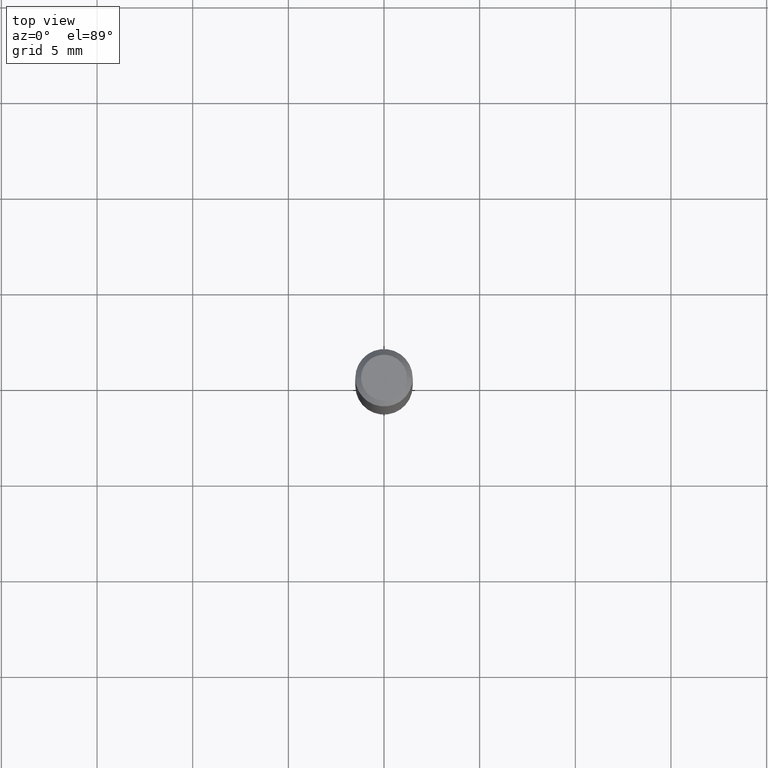
[diagram: clean part render]
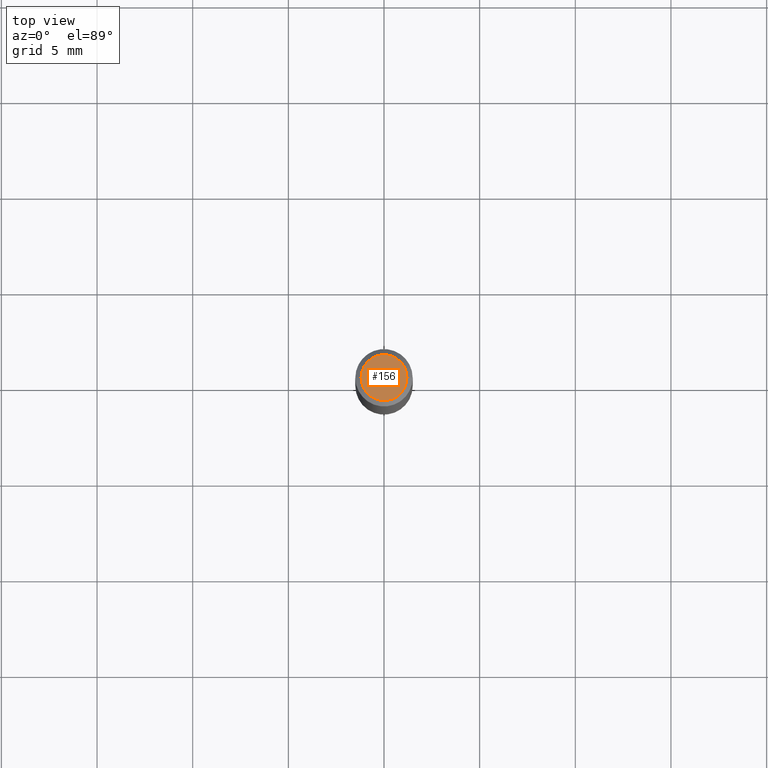
[diagram: same view with one face highlighted and labeled with its STEP entity id]
A machine part, top view. The second image highlights one B-rep face of the part: STEP entity #156.
In plain terms, the highlighted planar face has unit normal (0, -0, -1).
Its self-contained STEP definition (entity closure, byte-faithful):
#50 = DIRECTION ( 'NONE',  ( -1.000000000000000000, 6.982962677686265922E-15, -4.876176775795935793E-29 ) ) ;
#62 = CARTESIAN_POINT ( 'NONE',  ( -0.04724000000000000421, 3.504923541997677355E-16, -3.380025165670481712E-19 ) ) ;
#90 = CIRCLE ( 'NONE', #343, 0.04724000000000000421 ) ;
#111 = CIRCLE ( 'NONE', #296, 0.04724000000000000421 ) ;
#114 = EDGE_LOOP ( 'NONE', ( #307, #412 ) ) ;
#156 = ADVANCED_FACE ( 'NONE', ( #385 ), #466, .F. ) ;
#162 = CARTESIAN_POINT ( 'NONE',  ( 4.132873053354867254E-48, -5.900647395337818946E-34, -1.690012582823346072E-19 ) ) ;
#163 = EDGE_CURVE ( 'NONE', #195, #381, #90, .T. ) ;
#195 = VERTEX_POINT ( 'NONE', #62 ) ;
#202 = EDGE_CURVE ( 'NONE', #381, #195, #111, .T. ) ;
#210 = AXIS2_PLACEMENT_3D ( 'NONE', #162, #245, #50 ) ;
#245 = DIRECTION ( 'NONE',  ( 2.438088387897960049E-29, -3.491481338843145188E-15, -1.000000000000000000 ) ) ;
#296 = AXIS2_PLACEMENT_3D ( 'NONE', #327, #361, #435 ) ;
#307 = ORIENTED_EDGE ( 'NONE', *, *, #163, .T. ) ;
#325 = CARTESIAN_POINT ( 'NONE',  ( 8.265746106709734507E-48, -1.180129479067563789E-33, -3.380025165646692144E-19 ) ) ;
#327 = CARTESIAN_POINT ( 'NONE',  ( 8.265746106709734507E-48, -1.180129479067563789E-33, -3.380025165646692144E-19 ) ) ;
#343 = AXIS2_PLACEMENT_3D ( 'NONE', #325, #473, #464 ) ;
#361 = DIRECTION ( 'NONE',  ( -2.445468806185136597E-29, 3.491481338843145583E-15, 1.000000000000000000 ) ) ;
#381 = VERTEX_POINT ( 'NONE', #428 ) ;
#385 = FACE_OUTER_BOUND ( 'NONE', #114, .T. ) ;
#412 = ORIENTED_EDGE ( 'NONE', *, *, #202, .T. ) ;
#428 = CARTESIAN_POINT ( 'NONE',  ( 0.04724000000000000421, -3.852183633974369345E-16, -3.380025165621689721E-19 ) ) ;
#435 = DIRECTION ( 'NONE',  ( 1.000000000000000000, -6.982962677686266711E-15, 4.876185090822587894E-29 ) ) ;
#464 = DIRECTION ( 'NONE',  ( 1.000000000000000000, -6.982962677686266711E-15, 4.876185090822587894E-29 ) ) ;
#466 = PLANE ( 'NONE',  #210 ) ;
#473 = DIRECTION ( 'NONE',  ( -2.445468806185136597E-29, 3.491481338843145583E-15, 1.000000000000000000 ) ) ;